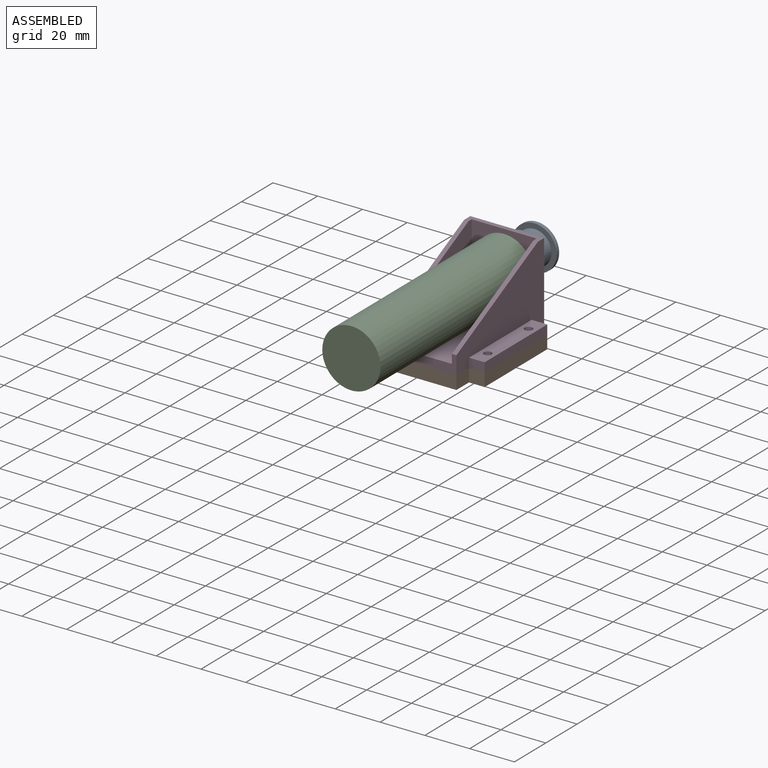
[diagram: assembled view]
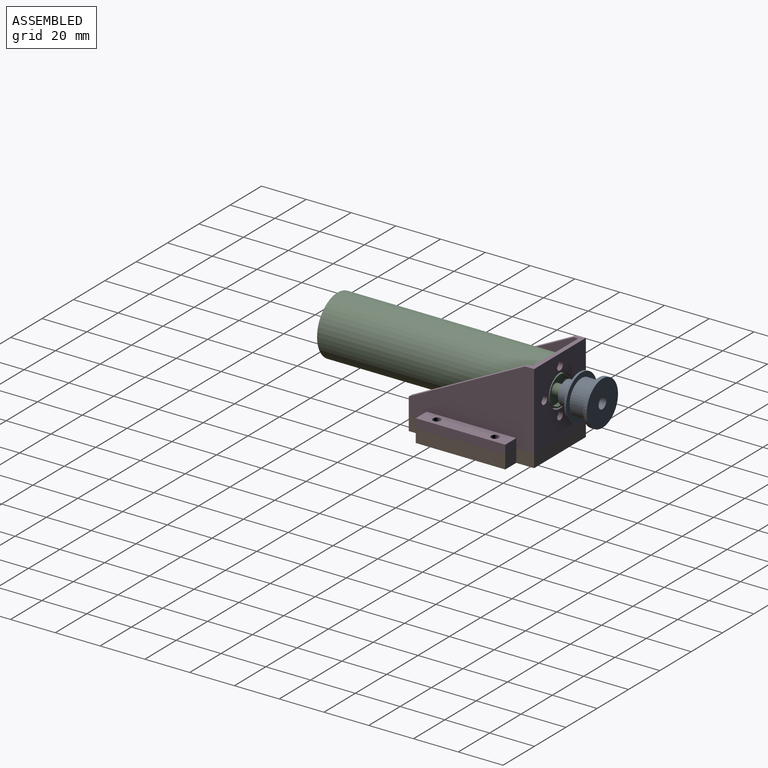
[diagram: assembled view, second angle]
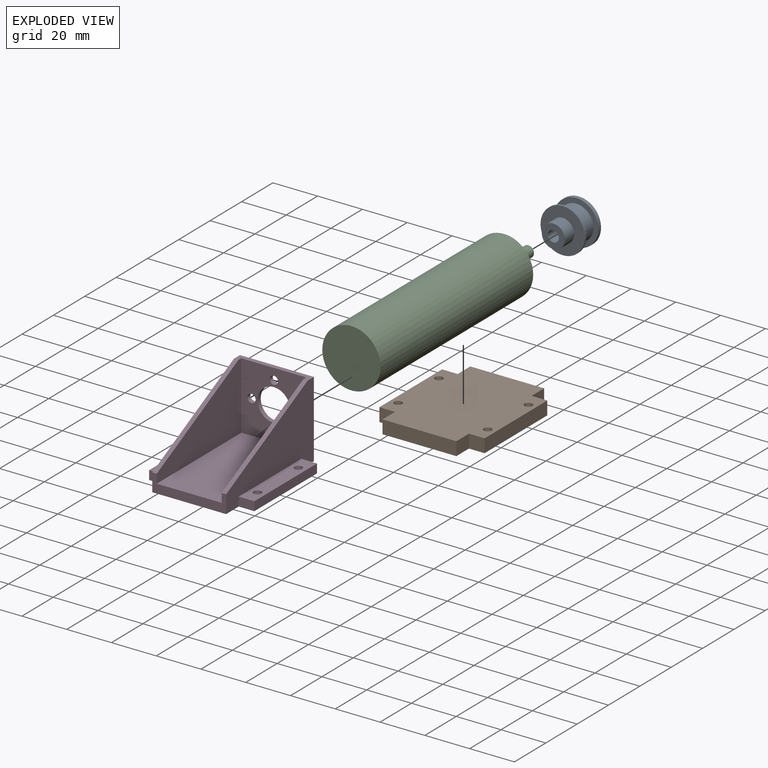
[diagram: exploded view]
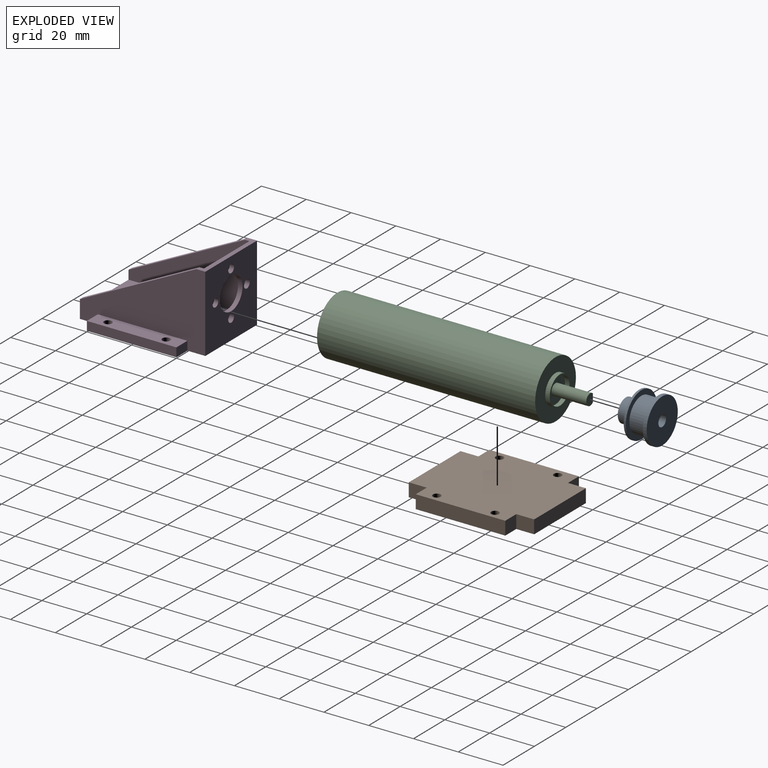
[diagram: exploded view, second angle]
ASSEMBLY  parts=4 mates=3
PART A: 10 faces, bbox 19.9x16.2x19.9 mm
  f0: cylinder r=9.93mm len=19.87mm, axis (0,1,0), area 104.9mm2, adj f1,f2
  f1: plane 19.87x19.87mm, normal (0,-1,0), area 125.3mm2, adj f0,f3
  f2: plane 19.87x19.87mm, normal (0,1,0), area 291.2mm2, adj f0,f7
  f3: cylinder r=7.67mm len=15.34mm, axis (0,1,0), area 367.2mm2, adj f1,f6
  f4: cylinder r=9.93mm len=19.87mm, axis (0,1,0), area 58.1mm2, adj f5,f6
  f5: plane 19.87x19.87mm, normal (0,-1,0), area 226mm2, adj f4,f8
  f6: plane 19.87x19.87mm, normal (0,1,0), area 125.3mm2, adj f3,f4
  f7: cylinder r=2.46mm len=16.23mm, axis (0,1,0), area 250.4mm2, adj f2,f9
  f8: cylinder r=5.17mm len=10.35mm, axis (0,1,0), area 195.1mm2, adj f5,f9
  f9: plane 10.35x10.35mm, normal (0,-1,0), area 65.2mm2, adj f7,f8
PART B: 18 faces, bbox 47x56x6 mm
  f0: plane 7x6mm, normal (0,-1,0), area 42mm2, adj f1,f14,f16,f17
  f1: plane 8x6mm, normal (1,0,0), area 48mm2, adj f0,f2,f16,f17
  f2: plane 33x6mm, normal (0,-1,0), area 198mm2, adj f1,f3,f16,f17
  f3: plane 8x6mm, normal (-1,0,0), area 48mm2, adj f2,f4,f16,f17
  f4: plane 7x6mm, normal (0,-1,0), area 42mm2, adj f3,f5,f16,f17
  f5: plane 40x6mm, normal (-1,0,0), area 240mm2, adj f4,f6,f16,f17
  f6: plane 7x6mm, normal (0,1,0), area 42mm2, adj f5,f7,f16,f17
  f7: plane 8x6mm, normal (-1,0,0), area 48mm2, adj f6,f8,f16,f17
  f8: plane 33x6mm, normal (0,1,0), area 198mm2, adj f7,f9,f16,f17
  f9: plane 8x6mm, normal (1,0,0), area 48mm2, adj f8,f10,f16,f17
  f10: plane 7x6mm, normal (0,1,0), area 42mm2, adj f9,f14,f16,f17
  f11: cylinder r=1.75mm len=6mm, axis (0,0,1), area 66mm2, adj f16,f17
  f12: cylinder r=1.75mm len=6mm, axis (0,0,1), area 66mm2, adj f16,f17
  f13: cylinder r=1.75mm len=6mm, axis (0,0,1), area 66mm2, adj f16,f17
  f14: plane 40x6mm, normal (1,0,0), area 240mm2, adj f0,f10,f16,f17
  f15: cylinder r=1.75mm len=6mm, axis (0,0,1), area 66mm2, adj f16,f17
  f16: plane 56x47mm, normal (0,0,-1), area 2369.5mm2, adj f0,f1,f2,f3,f4,f5,f6,f7
  f17: plane 56x47mm, normal (0,0,1), area 2369.5mm2, adj f0,f1,f2,f3,f4,f5,f6,f7
PART C: 11 faces, bbox 26x112.9x26 mm
  f0: plane 12.15x12.15mm, normal (0,-1,0), area 96mm2, adj f1,f5
  f1: cylinder r=2.52mm len=15.46mm, axis (0,1,0), area 196.4mm2, adj f0,f2,f3,f4
  f2: plane 5.04x4.24mm, normal (0,-1,0), area 17.9mm2, adj f1,f3
  f3: plane 11.75x3.67mm, normal (0,0,1), area 43.2mm2, adj f1,f2,f4
  f4: plane 3.67x0.8mm, normal (0,-1,0), area 2mm2, adj f1,f3
  f5: cylinder r=6.07mm len=12.15mm, axis (0,1,0), area 76.3mm2, adj f0,f7
  f6: cylinder r=6.61mm len=13.22mm, axis (0,1,0), area 83.1mm2, adj f7,f10
  f7: plane 13.22x13.22mm, normal (0,-1,0), area 21.3mm2, adj f5,f6
  f8: plane 26x26mm, normal (0,1,0), area 530.9mm2, adj f9
  f9: cylinder r=13mm len=97.44mm, axis (0,1,0), area 7959mm2, adj f8,f10
  f10: plane 26x26mm, normal (0,-1,0), area 393.7mm2, adj f6,f9
PART D: 29 faces, bbox 47x56x34 mm
  f0: plane 56x34mm, normal (1,0,0), area 1068mm2, adj f1,f2,f3,f5,f10,f15,f17,f22
  f1: plane 33x8mm, normal (0,-1,0), area 148mm2, adj f0,f9,f17,f18,f19,f21,f22,f23
  f2: plane 33x4mm, normal (0,0,1), area 74mm2, adj f0,f5,f9,f19,f20,f21,f22,f23
  f3: plane 40x7mm, normal (0,0,1), area 260.8mm2, adj f0,f10,f11,f12,f13,f15
  f4: plane 40x7mm, normal (0,0,1), area 260.8mm2, adj f6,f7,f8,f9,f14,f16
  f5: plane 34x33mm, normal (0,1,0), area 913.9mm2, adj f0,f2,f9,f17,f24,f25,f26,f27
  f6: plane 7x4mm, normal (0,1,0), area 28mm2, adj f4,f7,f9,f17
  f7: plane 40x4mm, normal (-1,0,0), area 160mm2, adj f4,f6,f8,f17
  f8: plane 7x4mm, normal (0,-1,0), area 28mm2, adj f4,f7,f9,f17
  f9: plane 56x34mm, normal (-1,0,0), area 1068mm2, adj f1,f2,f4,f5,f6,f8,f17,f23
  f10: plane 7x4mm, normal (0,-1,0), area 28mm2, adj f0,f3,f11,f17
  f11: plane 40x4mm, normal (1,0,0), area 160mm2, adj f3,f10,f15,f17
  f12: cylinder r=1.75mm len=4mm, axis (0,0,1), area 44mm2, adj f3,f17
  f13: cylinder r=1.75mm len=4mm, axis (0,0,1), area 44mm2, adj f3,f17
  f14: cylinder r=1.75mm len=4mm, axis (0,0,1), area 44mm2, adj f4,f17
  f15: plane 7x4mm, normal (0,1,0), area 28mm2, adj f0,f3,f11,f17
  f16: cylinder r=1.75mm len=4mm, axis (0,0,1), area 44mm2, adj f4,f17
  f17: plane 56x47mm, normal (0,0,-1), area 2369.5mm2, adj f0,f1,f5,f6,f7,f8,f9,f10
  f18: plane 54x29mm, normal (0,0,1), area 1566mm2, adj f1,f19,f20,f21
  f19: plane 54x30mm, normal (1,0,0), area 944mm2, adj f1,f2,f18,f20,f23
  f20: plane 30x29mm, normal (0,-1,0), area 661.9mm2, adj f2,f18,f19,f21,f24,f25,f26,f27
  f21: plane 54x30mm, normal (-1,0,0), area 944mm2, adj f1,f2,f18,f20,f22
  f22: plane 52x26mm, normal (0,-0.45,0.89), area 116.3mm2, adj f0,f1,f2,f21
  f23: plane 52x26mm, normal (0,-0.45,0.89), area 116.3mm2, adj f1,f2,f9,f19
  f24: cylinder r=1.85mm len=3.7mm, axis (0,-1,0), area 23.2mm2, adj f5,f20
  f25: cylinder r=1.85mm len=3.7mm, axis (0,-1,0), area 23.2mm2, adj f5,f20
  f26: cylinder r=1.85mm len=3.7mm, axis (0,-1,0), area 23.2mm2, adj f5,f20
  f27: cylinder r=7.25mm len=14.5mm, axis (0,-1,0), area 91.1mm2, adj f5,f20
  f28: cylinder r=1.85mm len=3.7mm, axis (0,-1,0), area 23.2mm2, adj f5,f20
PLACE A t=(-3.25,56.09,9.11)mm
PLACE B t=(-3.25,9.14,-5.89)mm
PLACE C rot(axis=(0.71,0,-0.71),180deg) t=(-3.25,-62.3,9.11)mm
PLACE D t=(-3.25,9.14,-5.89)mm fixed
MATE fastened C.f1 <-> A.f3  axis (0,-1,0) through (-3.25,50.6,9.11)mm
MATE fastened D.f27 <-> C.f9  axis (0,-1,0) through (-3.25,35.14,9.11)mm
MATE fastened B.f15 <-> D.f13  axis (0,0,1) through (16.75,-3.86,-9.89)mm
